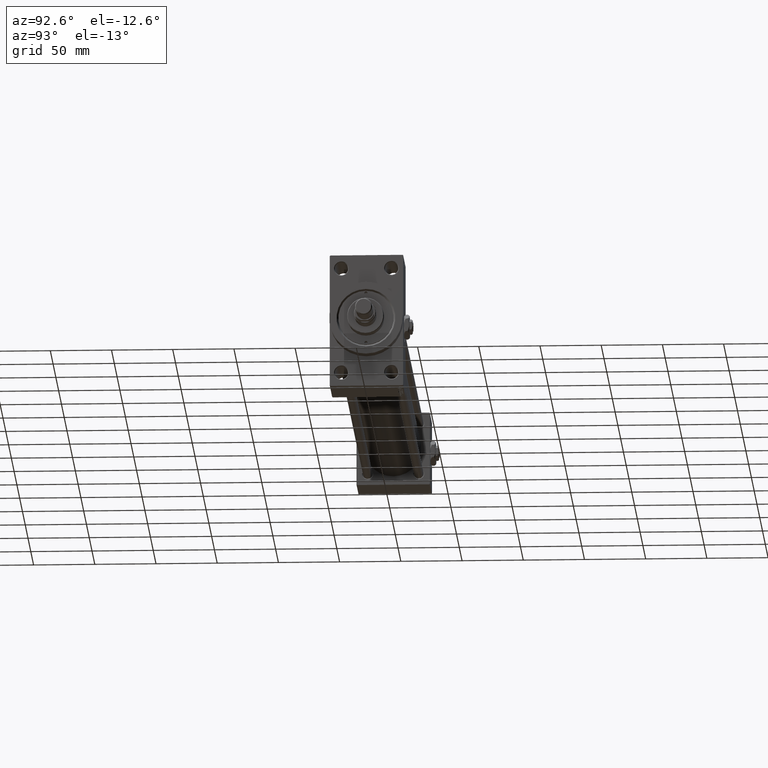
[diagram: clean part render]
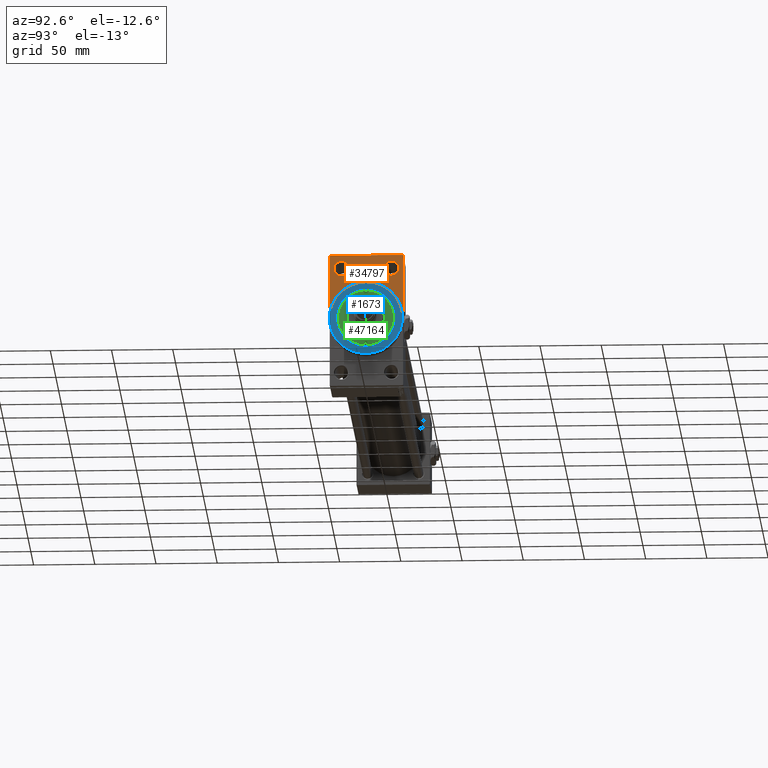
[diagram: same view with three faces highlighted in distinct colors, each labeled with its STEP entity id]
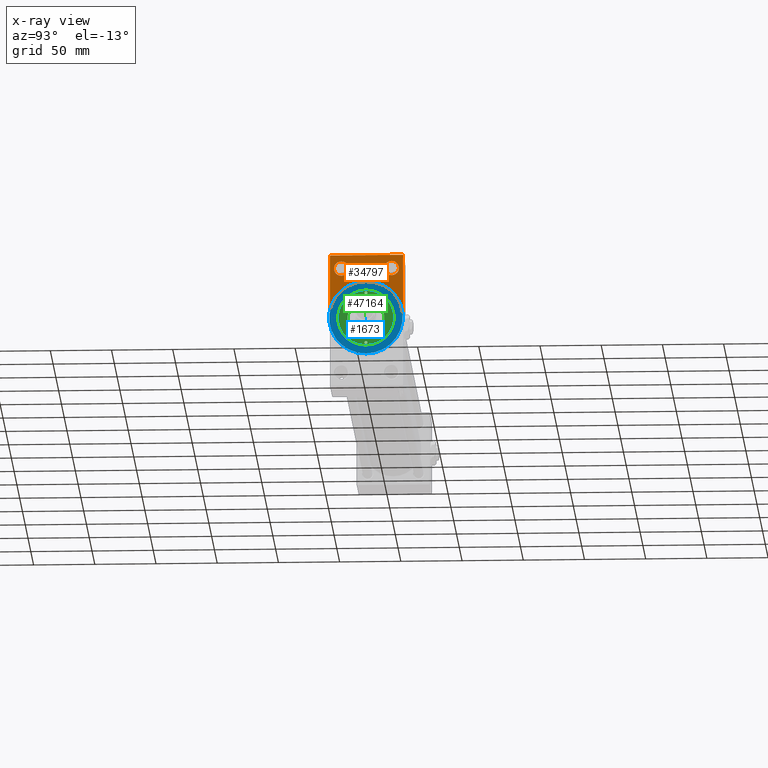
[diagram: x-ray of the same camera — body ghosted, the three highlighted faces saturated]
A machine part, auxiliary view with three faces highlighted in distinct colors.
The next image is the same camera in x-ray (body ghosted, the three faces saturated) — at least one of them is partly hidden behind the body in this view.
Their STEP definitions:

[orange] entity #34797 — the highlighted planar face has unit normal (-1, 0, 0).
#31 = VECTOR ( 'NONE', #47200, 1000.000000000000000 ) ;
#2162 = AXIS2_PLACEMENT_3D ( 'NONE', #32650, #12966, #28368 ) ;
#2773 = ORIENTED_EDGE ( 'NONE', *, *, #44885, .T. ) ;
#4052 = CIRCLE ( 'NONE', #38741, 5.999999999999950262 ) ;
#4475 = CARTESIAN_POINT ( 'NONE',  ( 518.0000000000000000, -29.49999999999994671, 54.50000000000000000 ) ) ;
#4728 = EDGE_CURVE ( 'NONE', #16873, #11886, #15146, .T. ) ;
#5050 = ORIENTED_EDGE ( 'NONE', *, *, #32301, .T. ) ;
#5633 = CIRCLE ( 'NONE', #47569, 30.00000000000000000 ) ;
#6615 = LINE ( 'NONE', #22004, #46931 ) ;
#8588 = DIRECTION ( 'NONE',  ( 0.000000000000000000, 0.000000000000000000, -1.000000000000000000 ) ) ;
#8732 = EDGE_CURVE ( 'NONE', #19583, #9912, #5633, .T. ) ;
#9422 = VERTEX_POINT ( 'NONE', #10968 ) ;
#9453 = LINE ( 'NONE', #48089, #26646 ) ;
#9592 = CARTESIAN_POINT ( 'NONE',  ( 518.0000000000000000, -30.00000000000000000, 54.50000000000000000 ) ) ;
#9718 = ORIENTED_EDGE ( 'NONE', *, *, #40781, .F. ) ;
#9912 = VERTEX_POINT ( 'NONE', #13178 ) ;
#10267 = ORIENTED_EDGE ( 'NONE', *, *, #12953, .T. ) ;
#10477 = ORIENTED_EDGE ( 'NONE', *, *, #8732, .F. ) ;
#10690 = DIRECTION ( 'NONE',  ( -0.000000000000000000, 0.000000000000000000, 1.000000000000000000 ) ) ;
#10968 = CARTESIAN_POINT ( 'NONE',  ( 518.0000000000000000, -20.50000000000000000, 49.49999999999995026 ) ) ;
#11886 = VERTEX_POINT ( 'NONE', #24465 ) ;
#12027 = CIRCLE ( 'NONE', #37017, 30.00000000000000000 ) ;
#12709 = EDGE_LOOP ( 'NONE', ( #5050, #42472 ) ) ;
#12847 = CARTESIAN_POINT ( 'NONE',  ( 518.0000000000000000, 29.49999999999993960, 54.49999999999999289 ) ) ;
#12953 = EDGE_CURVE ( 'NONE', #47386, #29899, #36681, .T. ) ;
#12966 = DIRECTION ( 'NONE',  ( -1.000000000000000000, 0.000000000000000000, -0.000000000000000000 ) ) ;
#12970 = DIRECTION ( 'NONE',  ( 1.000000000000000000, 0.000000000000000000, 0.000000000000000000 ) ) ;
#13178 = CARTESIAN_POINT ( 'NONE',  ( 518.0000000000000000, 0.000000000000000000, 30.00000000000000000 ) ) ;
#14343 = EDGE_CURVE ( 'NONE', #26787, #23215, #35838, .T. ) ;
#15146 = CIRCLE ( 'NONE', #24008, 5.999999999999950262 ) ;
#16211 = CARTESIAN_POINT ( 'NONE',  ( 518.0000000000000000, 30.00000000000000000, 0.000000000000000000 ) ) ;
#16493 = CARTESIAN_POINT ( 'NONE',  ( 518.0000000000000000, -30.00000000000000000, 54.00000000000000000 ) ) ;
#16873 = VERTEX_POINT ( 'NONE', #33157 ) ;
#18256 = CARTESIAN_POINT ( 'NONE',  ( 518.0000000000000000, 0.000000000000000000, 0.000000000000000000 ) ) ;
#18296 = CIRCLE ( 'NONE', #2162, 5.999999999999950262 ) ;
#19507 = AXIS2_PLACEMENT_3D ( 'NONE', #34989, #20071, #27662 ) ;
#19583 = VERTEX_POINT ( 'NONE', #16211 ) ;
#20071 = DIRECTION ( 'NONE',  ( -1.000000000000000000, 0.000000000000000000, -0.000000000000000000 ) ) ;
#22004 = CARTESIAN_POINT ( 'NONE',  ( 518.0000000000000000, 29.99999999999999645, 54.49999999999999289 ) ) ;
#22283 = FACE_OUTER_BOUND ( 'NONE', #26911, .T. ) ;
#22547 = DIRECTION ( 'NONE',  ( 1.000000000000000000, 0.000000000000000000, 0.000000000000000000 ) ) ;
#22727 = CARTESIAN_POINT ( 'NONE',  ( 518.0000000000000000, 29.49999999999993960, 54.49999999999999289 ) ) ;
#22777 = PLANE ( 'NONE',  #23179 ) ;
#23179 = AXIS2_PLACEMENT_3D ( 'NONE', #18256, #26330, #10690 ) ;
#23215 = VERTEX_POINT ( 'NONE', #22727 ) ;
#23337 = EDGE_CURVE ( 'NONE', #29899, #34953, #47239, .T. ) ;
#23921 = CARTESIAN_POINT ( 'NONE',  ( 518.0000000000000000, -20.50000000000000000, 43.50000000000000000 ) ) ;
#24008 = AXIS2_PLACEMENT_3D ( 'NONE', #29069, #36890, #25281 ) ;
#24465 = CARTESIAN_POINT ( 'NONE',  ( 518.0000000000000000, 20.50000000000000000, 49.49999999999995026 ) ) ;
#24820 = DIRECTION ( 'NONE',  ( 0.000000000000000000, 0.000000000000000000, -1.000000000000000000 ) ) ;
#25281 = DIRECTION ( 'NONE',  ( 0.000000000000000000, 0.000000000000000000, 1.000000000000000000 ) ) ;
#25929 = ORIENTED_EDGE ( 'NONE', *, *, #23337, .T. ) ;
#26330 = DIRECTION ( 'NONE',  ( -1.000000000000000000, 0.000000000000000000, -0.000000000000000000 ) ) ;
#26646 = VECTOR ( 'NONE', #44303, 1000.000000000000000 ) ;
#26787 = VERTEX_POINT ( 'NONE', #30821 ) ;
#26911 = EDGE_LOOP ( 'NONE', ( #2773, #10267, #25929, #9718, #10477, #36752, #42209 ) ) ;
#27662 = DIRECTION ( 'NONE',  ( 0.000000000000000000, 0.000000000000000000, 1.000000000000000000 ) ) ;
#27726 = DIRECTION ( 'NONE',  ( 0.000000000000000000, 0.000000000000000000, 1.000000000000000000 ) ) ;
#27843 = CARTESIAN_POINT ( 'NONE',  ( 518.0000000000000000, -20.50000000000000000, 37.50000000000004974 ) ) ;
#28368 = DIRECTION ( 'NONE',  ( 0.000000000000000000, 0.000000000000000000, 1.000000000000000000 ) ) ;
#29069 = CARTESIAN_POINT ( 'NONE',  ( 518.0000000000000000, 20.50000000000000000, 43.50000000000000000 ) ) ;
#29899 = VERTEX_POINT ( 'NONE', #47946 ) ;
#30619 = FACE_BOUND ( 'NONE', #39800, .T. ) ;
#30821 = CARTESIAN_POINT ( 'NONE',  ( 518.0000000000000000, 29.99999999999999645, 53.99999999999999289 ) ) ;
#32301 = EDGE_CURVE ( 'NONE', #35822, #9422, #18296, .T. ) ;
#32627 = VECTOR ( 'NONE', #8588, 1000.000000000000000 ) ;
#32650 = CARTESIAN_POINT ( 'NONE',  ( 518.0000000000000000, -20.50000000000000000, 43.50000000000000000 ) ) ;
#32655 = CARTESIAN_POINT ( 'NONE',  ( 518.0000000000000000, 0.000000000000000000, 0.000000000000000000 ) ) ;
#33157 = CARTESIAN_POINT ( 'NONE',  ( 518.0000000000000000, 20.50000000000000000, 37.50000000000004974 ) ) ;
#33317 = ORIENTED_EDGE ( 'NONE', *, *, #4728, .T. ) ;
#34797 = ADVANCED_FACE ( 'NONE', ( #48837, #30619, #22283 ), #22777, .F. ) ;
#34942 = CARTESIAN_POINT ( 'NONE',  ( 518.0000000000000000, 0.000000000000000000, 0.000000000000000000 ) ) ;
#34953 = VERTEX_POINT ( 'NONE', #42494 ) ;
#34989 = CARTESIAN_POINT ( 'NONE',  ( 518.0000000000000000, 20.50000000000000000, 43.50000000000000000 ) ) ;
#35688 = CIRCLE ( 'NONE', #19507, 5.999999999999950262 ) ;
#35822 = VERTEX_POINT ( 'NONE', #27843 ) ;
#35838 = LINE ( 'NONE', #12847, #31 ) ;
#36435 = DIRECTION ( 'NONE',  ( -0.000000000000000000, -0.7071067811865843211, -0.7071067811865108244 ) ) ;
#36681 = LINE ( 'NONE', #16493, #43563 ) ;
#36752 = ORIENTED_EDGE ( 'NONE', *, *, #47034, .F. ) ;
#36890 = DIRECTION ( 'NONE',  ( -1.000000000000000000, 0.000000000000000000, -0.000000000000000000 ) ) ;
#37017 = AXIS2_PLACEMENT_3D ( 'NONE', #34942, #22547, #38465 ) ;
#37419 = DIRECTION ( 'NONE',  ( 0.000000000000000000, 0.000000000000000000, -1.000000000000000000 ) ) ;
#38465 = DIRECTION ( 'NONE',  ( 0.000000000000000000, 0.000000000000000000, -1.000000000000000000 ) ) ;
#38741 = AXIS2_PLACEMENT_3D ( 'NONE', #23921, #42887, #27726 ) ;
#39800 = EDGE_LOOP ( 'NONE', ( #33317, #47938 ) ) ;
#40781 = EDGE_CURVE ( 'NONE', #9912, #34953, #12027, .T. ) ;
#42209 = ORIENTED_EDGE ( 'NONE', *, *, #14343, .T. ) ;
#42472 = ORIENTED_EDGE ( 'NONE', *, *, #43664, .T. ) ;
#42494 = CARTESIAN_POINT ( 'NONE',  ( 518.0000000000000000, -30.00000000000000000, 0.000000000000000000 ) ) ;
#42887 = DIRECTION ( 'NONE',  ( -1.000000000000000000, 0.000000000000000000, -0.000000000000000000 ) ) ;
#43563 = VECTOR ( 'NONE', #36435, 1000.000000000000000 ) ;
#43664 = EDGE_CURVE ( 'NONE', #9422, #35822, #4052, .T. ) ;
#44303 = DIRECTION ( 'NONE',  ( 0.000000000000000000, -1.000000000000000000, 1.156482317317871478E-16 ) ) ;
#44885 = EDGE_CURVE ( 'NONE', #23215, #47386, #9453, .T. ) ;
#46931 = VECTOR ( 'NONE', #37419, 1000.000000000000000 ) ;
#47034 = EDGE_CURVE ( 'NONE', #26787, #19583, #6615, .T. ) ;
#47200 = DIRECTION ( 'NONE',  ( 0.000000000000000000, -0.7071067811865867636, 0.7071067811865081598 ) ) ;
#47239 = LINE ( 'NONE', #9592, #32627 ) ;
#47386 = VERTEX_POINT ( 'NONE', #4475 ) ;
#47569 = AXIS2_PLACEMENT_3D ( 'NONE', #32655, #12970, #24820 ) ;
#47694 = EDGE_CURVE ( 'NONE', #11886, #16873, #35688, .T. ) ;
#47938 = ORIENTED_EDGE ( 'NONE', *, *, #47694, .T. ) ;
#47946 = CARTESIAN_POINT ( 'NONE',  ( 518.0000000000000000, -30.00000000000000000, 54.00000000000000000 ) ) ;
#48089 = CARTESIAN_POINT ( 'NONE',  ( 518.0000000000000000, 29.99999999999999645, 54.49999999999999289 ) ) ;
#48837 = FACE_BOUND ( 'NONE', #12709, .T. ) ;

[blue] entity #1673 — the highlighted planar face has unit normal (1, 0, 0).
#657 = CARTESIAN_POINT ( 'NONE',  ( 528.0000000000000000, 0.000000000000000000, 30.00000000000000000 ) ) ;
#1495 = CIRCLE ( 'NONE', #6333, 23.99999999999985789 ) ;
#1566 = CIRCLE ( 'NONE', #28183, 30.00000000000000000 ) ;
#1673 = ADVANCED_FACE ( 'NONE', ( #30668, #49385 ), #23328, .T. ) ;
#2115 = EDGE_CURVE ( 'NONE', #41629, #21103, #1566, .T. ) ;
#2230 = CARTESIAN_POINT ( 'NONE',  ( 528.0000000000000000, 0.000000000000000000, 0.000000000000000000 ) ) ;
#3893 = DIRECTION ( 'NONE',  ( 1.000000000000000000, 0.000000000000000000, 0.000000000000000000 ) ) ;
#5800 = CARTESIAN_POINT ( 'NONE',  ( 528.0000000000000000, 2.939152317953630539E-15, 23.99999999999985789 ) ) ;
#6307 = CARTESIAN_POINT ( 'NONE',  ( 528.0000000000000000, 0.000000000000000000, 0.000000000000000000 ) ) ;
#6333 = AXIS2_PLACEMENT_3D ( 'NONE', #16786, #31699, #47859 ) ;
#7822 = CARTESIAN_POINT ( 'NONE',  ( 528.0000000000000000, 0.000000000000000000, 0.000000000000000000 ) ) ;
#12297 = VERTEX_POINT ( 'NONE', #23014 ) ;
#14615 = CIRCLE ( 'NONE', #29931, 30.00000000000000000 ) ;
#16094 = EDGE_CURVE ( 'NONE', #21103, #41629, #14615, .T. ) ;
#16786 = CARTESIAN_POINT ( 'NONE',  ( 528.0000000000000000, 0.000000000000000000, 0.000000000000000000 ) ) ;
#19550 = DIRECTION ( 'NONE',  ( 0.000000000000000000, 0.000000000000000000, -1.000000000000000000 ) ) ;
#21103 = VERTEX_POINT ( 'NONE', #42869 ) ;
#22736 = VERTEX_POINT ( 'NONE', #5800 ) ;
#23014 = CARTESIAN_POINT ( 'NONE',  ( 528.0000000000000000, 0.000000000000000000, -23.99999999999985789 ) ) ;
#23213 = DIRECTION ( 'NONE',  ( -1.000000000000000000, -0.000000000000000000, -0.000000000000000000 ) ) ;
#23328 = PLANE ( 'NONE',  #29011 ) ;
#25907 = EDGE_CURVE ( 'NONE', #22736, #12297, #36629, .T. ) ;
#26727 = ORIENTED_EDGE ( 'NONE', *, *, #2115, .T. ) ;
#27026 = EDGE_LOOP ( 'NONE', ( #26727, #43914 ) ) ;
#28183 = AXIS2_PLACEMENT_3D ( 'NONE', #2230, #43676, #43922 ) ;
#28748 = ORIENTED_EDGE ( 'NONE', *, *, #39773, .T. ) ;
#29011 = AXIS2_PLACEMENT_3D ( 'NONE', #46081, #3893, #19550 ) ;
#29931 = AXIS2_PLACEMENT_3D ( 'NONE', #6307, #48242, #33831 ) ;
#30668 = FACE_BOUND ( 'NONE', #49788, .T. ) ;
#31699 = DIRECTION ( 'NONE',  ( -1.000000000000000000, -0.000000000000000000, -0.000000000000000000 ) ) ;
#32060 = DIRECTION ( 'NONE',  ( 0.000000000000000000, 0.000000000000000000, -1.000000000000000000 ) ) ;
#33831 = DIRECTION ( 'NONE',  ( 0.000000000000000000, 0.000000000000000000, -1.000000000000000000 ) ) ;
#34817 = ORIENTED_EDGE ( 'NONE', *, *, #25907, .T. ) ;
#36629 = CIRCLE ( 'NONE', #47947, 23.99999999999985789 ) ;
#39773 = EDGE_CURVE ( 'NONE', #12297, #22736, #1495, .T. ) ;
#41629 = VERTEX_POINT ( 'NONE', #657 ) ;
#42869 = CARTESIAN_POINT ( 'NONE',  ( 528.0000000000000000, 3.673940397442059178E-15, -30.00000000000000000 ) ) ;
#43676 = DIRECTION ( 'NONE',  ( 1.000000000000000000, 0.000000000000000000, 0.000000000000000000 ) ) ;
#43914 = ORIENTED_EDGE ( 'NONE', *, *, #16094, .T. ) ;
#43922 = DIRECTION ( 'NONE',  ( 0.000000000000000000, 0.000000000000000000, -1.000000000000000000 ) ) ;
#46081 = CARTESIAN_POINT ( 'NONE',  ( 528.0000000000000000, 0.000000000000000000, 0.000000000000000000 ) ) ;
#47859 = DIRECTION ( 'NONE',  ( 0.000000000000000000, 0.000000000000000000, -1.000000000000000000 ) ) ;
#47947 = AXIS2_PLACEMENT_3D ( 'NONE', #7822, #23213, #32060 ) ;
#48242 = DIRECTION ( 'NONE',  ( 1.000000000000000000, 0.000000000000000000, 0.000000000000000000 ) ) ;
#49385 = FACE_OUTER_BOUND ( 'NONE', #27026, .T. ) ;
#49788 = EDGE_LOOP ( 'NONE', ( #28748, #34817 ) ) ;

[green] entity #47164 — the highlighted planar face has unit normal (1, -0, -0).
#520 = FACE_OUTER_BOUND ( 'NONE', #34949, .T. ) ;
#664 = ORIENTED_EDGE ( 'NONE', *, *, #22889, .F. ) ;
#815 = DIRECTION ( 'NONE',  ( -0.000000000000000000, -0.000000000000000000, 1.000000000000000000 ) ) ;
#2016 = DIRECTION ( 'NONE',  ( 0.000000000000000000, 0.000000000000000000, 1.000000000000000000 ) ) ;
#2753 = VERTEX_POINT ( 'NONE', #35138 ) ;
#3645 = DIRECTION ( 'NONE',  ( -0.000000000000000000, -0.000000000000000000, 1.000000000000000000 ) ) ;
#3989 = EDGE_LOOP ( 'NONE', ( #30910, #664 ) ) ;
#4314 = FACE_BOUND ( 'NONE', #44990, .T. ) ;
#5122 = VERTEX_POINT ( 'NONE', #18872 ) ;
#6290 = DIRECTION ( 'NONE',  ( 0.000000000000000000, 0.000000000000000000, 1.000000000000000000 ) ) ;
#6662 = CIRCLE ( 'NONE', #29261, 15.00000000000000000 ) ;
#7183 = CARTESIAN_POINT ( 'NONE',  ( 20.75000000000000000, 0.000000000000000000, 43.25999999999999801 ) ) ;
#7904 = AXIS2_PLACEMENT_3D ( 'NONE', #24030, #815, #47042 ) ;
#8279 = DIRECTION ( 'NONE',  ( -0.000000000000000000, -0.000000000000000000, 1.000000000000000000 ) ) ;
#8431 = AXIS2_PLACEMENT_3D ( 'NONE', #29523, #6290, #24737 ) ;
#8679 = CIRCLE ( 'NONE', #15124, 1.249999999999997558 ) ;
#9238 = CIRCLE ( 'NONE', #18860, 1.249999999999997558 ) ;
#9464 = ORIENTED_EDGE ( 'NONE', *, *, #34206, .F. ) ;
#9827 = AXIS2_PLACEMENT_3D ( 'NONE', #40410, #2016, #24497 ) ;
#10047 = DIRECTION ( 'NONE',  ( 1.000000000000000000, 0.000000000000000000, 0.000000000000000000 ) ) ;
#11039 = DIRECTION ( 'NONE',  ( -0.000000000000000000, -0.000000000000000000, 1.000000000000000000 ) ) ;
#12335 = CARTESIAN_POINT ( 'NONE',  ( 19.50000000000000355, 1.530808498934188612E-16, 43.25999999999999801 ) ) ;
#12949 = AXIS2_PLACEMENT_3D ( 'NONE', #7183, #3645, #10047 ) ;
#13558 = DIRECTION ( 'NONE',  ( 1.000000000000000000, 0.000000000000000000, 0.000000000000000000 ) ) ;
#13637 = PLANE ( 'NONE',  #9827 ) ;
#14395 = EDGE_CURVE ( 'NONE', #5122, #31405, #34718, .T. ) ;
#14822 = CIRCLE ( 'NONE', #43063, 22.50000000000000355 ) ;
#15124 = AXIS2_PLACEMENT_3D ( 'NONE', #34525, #11039, #42114 ) ;
#15999 = ORIENTED_EDGE ( 'NONE', *, *, #17763, .F. ) ;
#16385 = CARTESIAN_POINT ( 'NONE',  ( -22.00000000000000000, 1.530808498934188612E-16, 43.25999999999999801 ) ) ;
#17279 = CARTESIAN_POINT ( 'NONE',  ( -19.50000000000000355, 0.000000000000000000, 43.25999999999999801 ) ) ;
#17763 = EDGE_CURVE ( 'NONE', #46866, #2753, #41322, .T. ) ;
#17807 = ORIENTED_EDGE ( 'NONE', *, *, #39188, .F. ) ;
#18860 = AXIS2_PLACEMENT_3D ( 'NONE', #39595, #8279, #23673 ) ;
#18872 = CARTESIAN_POINT ( 'NONE',  ( 22.00000000000000000, 0.000000000000000000, 43.25999999999999801 ) ) ;
#19706 = FACE_BOUND ( 'NONE', #3989, .T. ) ;
#20048 = DIRECTION ( 'NONE',  ( 0.000000000000000000, 0.000000000000000000, 1.000000000000000000 ) ) ;
#20204 = CARTESIAN_POINT ( 'NONE',  ( 0.000000000000000000, 0.000000000000000000, 43.25999999999999801 ) ) ;
#20548 = DIRECTION ( 'NONE',  ( 1.000000000000000000, 0.000000000000000000, 0.000000000000000000 ) ) ;
#21426 = EDGE_CURVE ( 'NONE', #22488, #28466, #14822, .T. ) ;
#22488 = VERTEX_POINT ( 'NONE', #27030 ) ;
#22697 = ORIENTED_EDGE ( 'NONE', *, *, #48442, .F. ) ;
#22889 = EDGE_CURVE ( 'NONE', #31405, #5122, #9238, .T. ) ;
#23673 = DIRECTION ( 'NONE',  ( 1.000000000000000000, 0.000000000000000000, 0.000000000000000000 ) ) ;
#23737 = CIRCLE ( 'NONE', #8431, 22.50000000000000355 ) ;
#24030 = CARTESIAN_POINT ( 'NONE',  ( -20.75000000000000000, 0.000000000000000000, 43.25999999999999801 ) ) ;
#24497 = DIRECTION ( 'NONE',  ( 1.000000000000000000, 0.000000000000000000, -0.000000000000000000 ) ) ;
#24737 = DIRECTION ( 'NONE',  ( 1.000000000000000000, 0.000000000000000000, 0.000000000000000000 ) ) ;
#24910 = CARTESIAN_POINT ( 'NONE',  ( 0.000000000000000000, 0.000000000000000000, 43.25999999999999801 ) ) ;
#26481 = CARTESIAN_POINT ( 'NONE',  ( 22.50000000000000355, 2.755455298081545172E-15, 43.25999999999999801 ) ) ;
#27030 = CARTESIAN_POINT ( 'NONE',  ( -22.50000000000000355, 0.000000000000000000, 43.25999999999999801 ) ) ;
#27039 = EDGE_CURVE ( 'NONE', #28466, #22488, #23737, .T. ) ;
#27480 = EDGE_LOOP ( 'NONE', ( #22697, #15999 ) ) ;
#28466 = VERTEX_POINT ( 'NONE', #26481 ) ;
#28555 = VERTEX_POINT ( 'NONE', #16385 ) ;
#29204 = AXIS2_PLACEMENT_3D ( 'NONE', #31927, #20048, #20548 ) ;
#29261 = AXIS2_PLACEMENT_3D ( 'NONE', #20204, #47981, #47483 ) ;
#29523 = CARTESIAN_POINT ( 'NONE',  ( 0.000000000000000000, 0.000000000000000000, 43.25999999999999801 ) ) ;
#30910 = ORIENTED_EDGE ( 'NONE', *, *, #14395, .F. ) ;
#31269 = CIRCLE ( 'NONE', #7904, 1.249999999999997558 ) ;
#31405 = VERTEX_POINT ( 'NONE', #12335 ) ;
#31927 = CARTESIAN_POINT ( 'NONE',  ( 0.000000000000000000, 0.000000000000000000, 43.25999999999999801 ) ) ;
#34206 = EDGE_CURVE ( 'NONE', #45931, #28555, #8679, .T. ) ;
#34525 = CARTESIAN_POINT ( 'NONE',  ( -20.75000000000000000, 0.000000000000000000, 43.25999999999999801 ) ) ;
#34718 = CIRCLE ( 'NONE', #12949, 1.249999999999997558 ) ;
#34949 = EDGE_LOOP ( 'NONE', ( #38225, #45325 ) ) ;
#35126 = FACE_BOUND ( 'NONE', #27480, .T. ) ;
#35138 = CARTESIAN_POINT ( 'NONE',  ( -15.00000000000000000, 0.000000000000000000, 43.25999999999999801 ) ) ;
#38225 = ORIENTED_EDGE ( 'NONE', *, *, #21426, .T. ) ;
#39188 = EDGE_CURVE ( 'NONE', #28555, #45931, #31269, .T. ) ;
#39595 = CARTESIAN_POINT ( 'NONE',  ( 20.75000000000000000, 0.000000000000000000, 43.25999999999999801 ) ) ;
#40410 = CARTESIAN_POINT ( 'NONE',  ( 0.000000000000000000, 0.000000000000000000, 43.25999999999999801 ) ) ;
#41322 = CIRCLE ( 'NONE', #29204, 15.00000000000000000 ) ;
#42114 = DIRECTION ( 'NONE',  ( 1.000000000000000000, 0.000000000000000000, 0.000000000000000000 ) ) ;
#43063 = AXIS2_PLACEMENT_3D ( 'NONE', #24910, #44615, #13558 ) ;
#44615 = DIRECTION ( 'NONE',  ( 0.000000000000000000, 0.000000000000000000, 1.000000000000000000 ) ) ;
#44990 = EDGE_LOOP ( 'NONE', ( #9464, #17807 ) ) ;
#45325 = ORIENTED_EDGE ( 'NONE', *, *, #27039, .T. ) ;
#45931 = VERTEX_POINT ( 'NONE', #17279 ) ;
#46866 = VERTEX_POINT ( 'NONE', #49353 ) ;
#47042 = DIRECTION ( 'NONE',  ( 1.000000000000000000, 0.000000000000000000, 0.000000000000000000 ) ) ;
#47164 = ADVANCED_FACE ( 'NONE', ( #4314, #19706, #35126, #520 ), #13637, .T. ) ;
#47483 = DIRECTION ( 'NONE',  ( 1.000000000000000000, 0.000000000000000000, 0.000000000000000000 ) ) ;
#47981 = DIRECTION ( 'NONE',  ( 0.000000000000000000, 0.000000000000000000, 1.000000000000000000 ) ) ;
#48442 = EDGE_CURVE ( 'NONE', #2753, #46866, #6662, .T. ) ;
#49353 = CARTESIAN_POINT ( 'NONE',  ( 15.00000000000000000, 1.836970198721029589E-15, 43.25999999999999801 ) ) ;